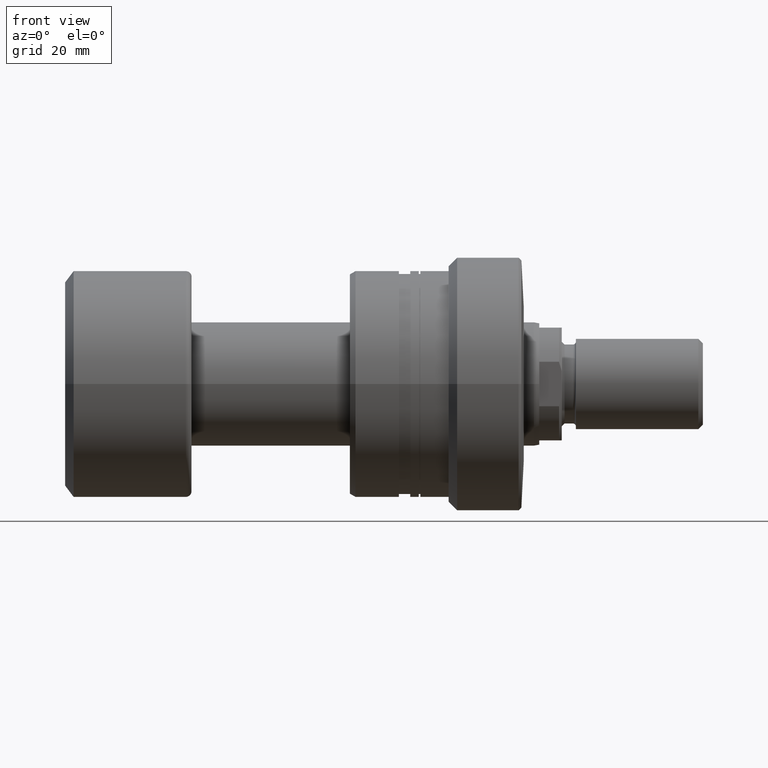
[diagram: clean part render]
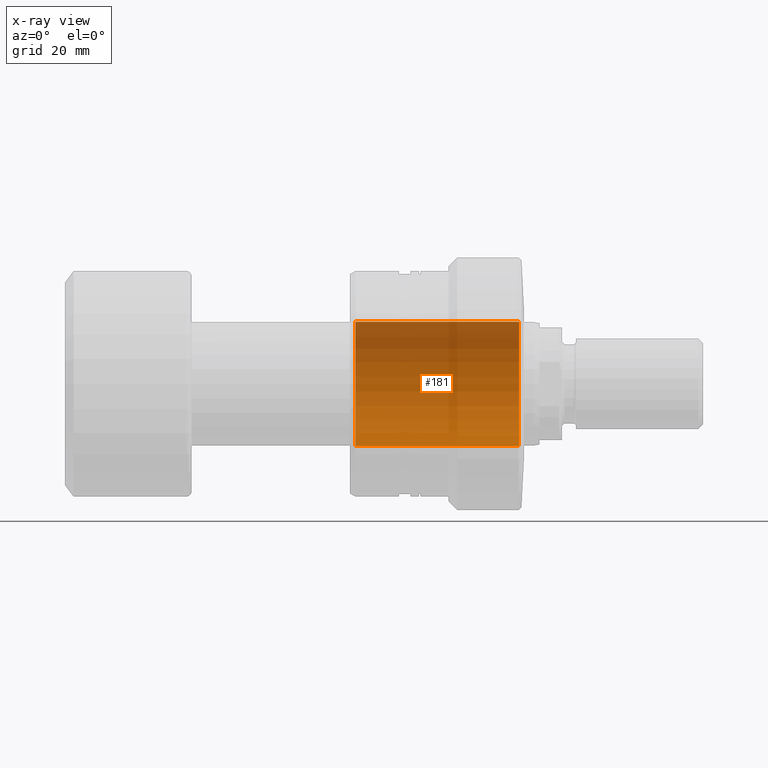
[diagram: x-ray — body ghosted, one internal face saturated and labeled with its STEP entity id]
A machine part, front view, then the same camera in x-ray: the body is ghosted and one INTERNAL B-rep face — a face not visible from any outside direction — is saturated and labeled: STEP entity #181.
In plain terms, the highlighted cylindrical surface (partial cylindrical patch) has radius 11 mm, axis along (1, 0, 0).
Its self-contained STEP definition (entity closure, byte-faithful):
#88 = ORIENTED_EDGE ( 'NONE', *, *, #2091, .T. ) ;
#181 = ADVANCED_FACE ( 'NONE', ( #2337 ), #2774, .F. ) ;
#228 = VERTEX_POINT ( 'NONE', #491 ) ;
#268 = DIRECTION ( 'NONE',  ( 0.000000000000000000, 0.000000000000000000, -1.000000000000000000 ) ) ;
#280 = EDGE_CURVE ( 'NONE', #1469, #1580, #468, .T. ) ;
#456 = DIRECTION ( 'NONE',  ( 1.000000000000000000, -0.000000000000000000, -0.000000000000000000 ) ) ;
#468 = LINE ( 'NONE', #935, #2805 ) ;
#491 = CARTESIAN_POINT ( 'NONE',  ( -30.50000000000002132, 0.000000000000000000, -11.00000000000000000 ) ) ;
#544 = ORIENTED_EDGE ( 'NONE', *, *, #280, .F. ) ;
#685 = DIRECTION ( 'NONE',  ( 1.000000000000000000, -0.000000000000000000, -0.000000000000000000 ) ) ;
#775 = DIRECTION ( 'NONE',  ( 0.000000000000000000, 0.000000000000000000, -1.000000000000000000 ) ) ;
#776 = VERTEX_POINT ( 'NONE', #814 ) ;
#814 = CARTESIAN_POINT ( 'NONE',  ( -1.500000000000000000, 0.000000000000000000, -11.00000000000000000 ) ) ;
#860 = CIRCLE ( 'NONE', #1606, 11.00000000000000000 ) ;
#935 = CARTESIAN_POINT ( 'NONE',  ( -62.61269837220812207, 1.347111479062088405E-15, 11.00000000000000000 ) ) ;
#960 = CARTESIAN_POINT ( 'NONE',  ( -1.500000000000000000, 0.000000000000000000, 0.000000000000000000 ) ) ;
#1008 = CARTESIAN_POINT ( 'NONE',  ( -1.500000000000000000, 1.347111479062088405E-15, 11.00000000000000000 ) ) ;
#1045 = VECTOR ( 'NONE', #456, 1000.000000000000000 ) ;
#1249 = DIRECTION ( 'NONE',  ( 1.000000000000000000, -0.000000000000000000, -0.000000000000000000 ) ) ;
#1263 = CARTESIAN_POINT ( 'NONE',  ( -62.61269837220812207, 0.000000000000000000, 0.000000000000000000 ) ) ;
#1267 = CARTESIAN_POINT ( 'NONE',  ( -30.50000000000002132, 0.000000000000000000, 0.000000000000000000 ) ) ;
#1323 = ORIENTED_EDGE ( 'NONE', *, *, #2191, .T. ) ;
#1469 = VERTEX_POINT ( 'NONE', #1681 ) ;
#1580 = VERTEX_POINT ( 'NONE', #1008 ) ;
#1606 = AXIS2_PLACEMENT_3D ( 'NONE', #960, #2742, #268 ) ;
#1681 = CARTESIAN_POINT ( 'NONE',  ( -30.50000000000002132, 1.347111479062088405E-15, 11.00000000000000000 ) ) ;
#2018 = LINE ( 'NONE', #2686, #1045 ) ;
#2091 = EDGE_CURVE ( 'NONE', #1469, #228, #2163, .T. ) ;
#2150 = DIRECTION ( 'NONE',  ( -1.000000000000000000, 0.000000000000000000, 0.000000000000000000 ) ) ;
#2163 = CIRCLE ( 'NONE', #2291, 11.00000000000000000 ) ;
#2183 = DIRECTION ( 'NONE',  ( 0.000000000000000000, 0.000000000000000000, -1.000000000000000000 ) ) ;
#2191 = EDGE_CURVE ( 'NONE', #228, #776, #2018, .T. ) ;
#2291 = AXIS2_PLACEMENT_3D ( 'NONE', #1267, #2150, #2183 ) ;
#2337 = FACE_OUTER_BOUND ( 'NONE', #2766, .T. ) ;
#2415 = ORIENTED_EDGE ( 'NONE', *, *, #2866, .T. ) ;
#2521 = AXIS2_PLACEMENT_3D ( 'NONE', #1263, #1249, #775 ) ;
#2686 = CARTESIAN_POINT ( 'NONE',  ( -62.61269837220812207, 0.000000000000000000, -11.00000000000000000 ) ) ;
#2742 = DIRECTION ( 'NONE',  ( 1.000000000000000000, 0.000000000000000000, 0.000000000000000000 ) ) ;
#2766 = EDGE_LOOP ( 'NONE', ( #544, #88, #1323, #2415 ) ) ;
#2774 = CYLINDRICAL_SURFACE ( 'NONE', #2521, 11.00000000000000000 ) ;
#2805 = VECTOR ( 'NONE', #685, 1000.000000000000000 ) ;
#2866 = EDGE_CURVE ( 'NONE', #776, #1580, #860, .T. ) ;